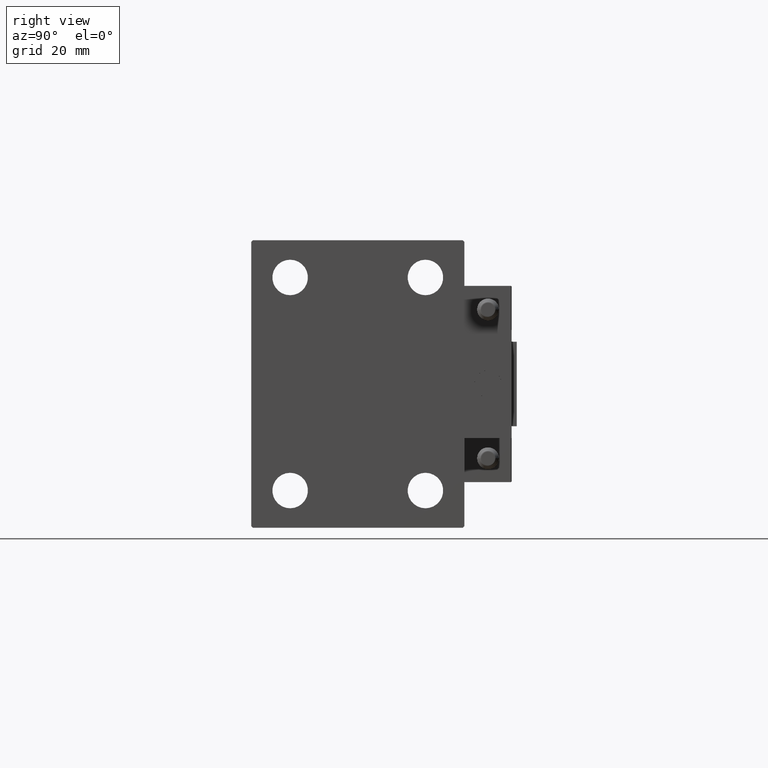
[diagram: clean part render]
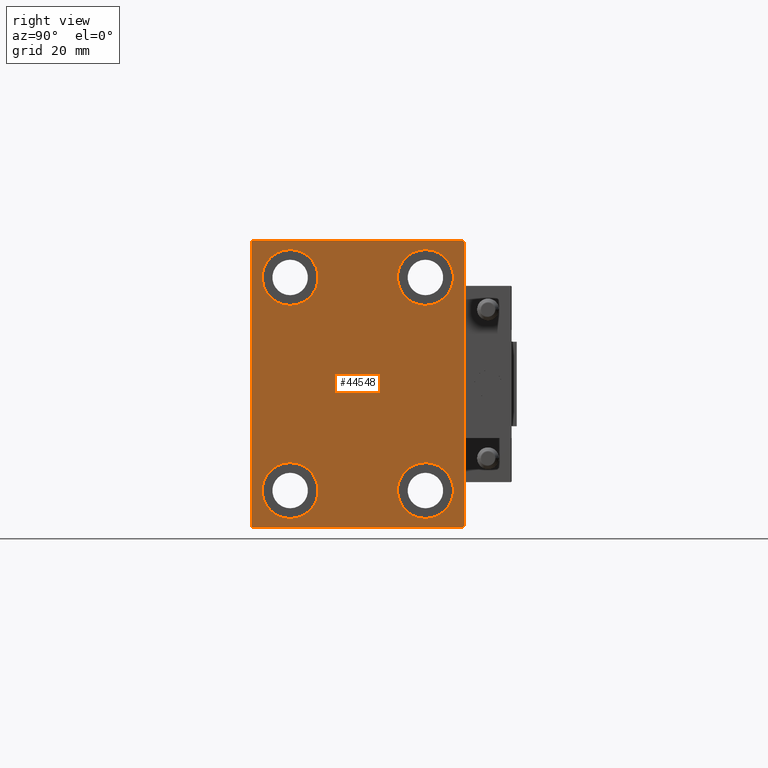
[diagram: same view with one face highlighted and labeled with its STEP entity id]
A machine part, right view. The second image highlights one B-rep face of the part: STEP entity #44548.
In plain terms, the highlighted planar face has unit normal (1, 0, 0).
Its self-contained STEP definition (entity closure, byte-faithful):
#30 = CIRCLE ( 'NONE', #24558, 8.250000000000000000 ) ;
#1088 = ORIENTED_EDGE ( 'NONE', *, *, #23729, .T. ) ;
#1093 = DIRECTION ( 'NONE',  ( 0.000000000000000000, 0.000000000000000000, 1.000000000000000000 ) ) ;
#1156 = LINE ( 'NONE', #5261, #7610 ) ;
#1692 = CARTESIAN_POINT ( 'NONE',  ( 88.00000000000000000, 19.99999999999999645, -23.24999999999999289 ) ) ;
#1827 = LINE ( 'NONE', #40217, #33951 ) ;
#1921 = CIRCLE ( 'NONE', #4367, 8.250000000000000000 ) ;
#1940 = AXIS2_PLACEMENT_3D ( 'NONE', #15238, #27515, #50015 ) ;
#3058 = DIRECTION ( 'NONE',  ( 0.000000000000000000, 0.000000000000000000, -1.000000000000000000 ) ) ;
#3697 = EDGE_LOOP ( 'NONE', ( #24541, #16223, #11099, #10883, #44433, #46330, #41288, #31602 ) ) ;
#4051 = CARTESIAN_POINT ( 'NONE',  ( 88.00000000000000000, 19.99999999999999645, -31.49999999999999289 ) ) ;
#4367 = AXIS2_PLACEMENT_3D ( 'NONE', #24006, #7362, #35020 ) ;
#4533 = VERTEX_POINT ( 'NONE', #16744 ) ;
#4848 = DIRECTION ( 'NONE',  ( 0.000000000000000000, 0.000000000000000000, 1.000000000000000000 ) ) ;
#4946 = CARTESIAN_POINT ( 'NONE',  ( 88.00000000000000000, -20.00000000000000355, -31.49999999999999289 ) ) ;
#5052 = VERTEX_POINT ( 'NONE', #34807 ) ;
#5261 = CARTESIAN_POINT ( 'NONE',  ( 88.00000000000000000, 36.75000000000045475, -36.74999999999943867 ) ) ;
#5374 = DIRECTION ( 'NONE',  ( 0.000000000000000000, 0.000000000000000000, 1.000000000000000000 ) ) ;
#5500 = AXIS2_PLACEMENT_3D ( 'NONE', #4946, #20564, #1093 ) ;
#5790 = CARTESIAN_POINT ( 'NONE',  ( 88.00000000000000000, 36.74999999999999289, 36.74999999999999289 ) ) ;
#6601 = CARTESIAN_POINT ( 'NONE',  ( 88.00000000000000000, -36.75000000000044054, 36.74999999999942446 ) ) ;
#6653 = EDGE_CURVE ( 'NONE', #44770, #32929, #37815, .T. ) ;
#7362 = DIRECTION ( 'NONE',  ( -1.000000000000000000, -0.000000000000000000, -0.000000000000000000 ) ) ;
#7574 = CARTESIAN_POINT ( 'NONE',  ( 88.00000000000000000, -20.00000000000000355, -23.24999999999999289 ) ) ;
#7610 = VECTOR ( 'NONE', #47727, 1000.000000000000000 ) ;
#7682 = LINE ( 'NONE', #23313, #28135 ) ;
#7699 = EDGE_CURVE ( 'NONE', #19615, #27165, #18130, .T. ) ;
#7752 = CARTESIAN_POINT ( 'NONE',  ( 88.00000000000000000, 31.50000000000000000, 41.99999999999999289 ) ) ;
#8442 = CARTESIAN_POINT ( 'NONE',  ( 88.00000000000000000, 20.00000000000000355, 31.50000000000000000 ) ) ;
#8588 = DIRECTION ( 'NONE',  ( 0.000000000000000000, 0.000000000000000000, 1.000000000000000000 ) ) ;
#9161 = EDGE_CURVE ( 'NONE', #13018, #4533, #12583, .T. ) ;
#9604 = CARTESIAN_POINT ( 'NONE',  ( 88.00000000000000000, -19.99999999999999645, 31.50000000000000000 ) ) ;
#10386 = LINE ( 'NONE', #5790, #47368 ) ;
#10430 = DIRECTION ( 'NONE',  ( -1.000000000000000000, -0.000000000000000000, -0.000000000000000000 ) ) ;
#10493 = DIRECTION ( 'NONE',  ( 1.000000000000000000, 0.000000000000000000, 0.000000000000000000 ) ) ;
#10762 = CARTESIAN_POINT ( 'NONE',  ( 88.00000000000000000, 19.99999999999999645, -39.74999999999999289 ) ) ;
#10883 = ORIENTED_EDGE ( 'NONE', *, *, #20715, .T. ) ;
#11099 = ORIENTED_EDGE ( 'NONE', *, *, #37441, .T. ) ;
#11437 = CARTESIAN_POINT ( 'NONE',  ( 88.00000000000000000, -31.00000000000000000, -42.50000000000000711 ) ) ;
#11795 = VERTEX_POINT ( 'NONE', #7574 ) ;
#12583 = CIRCLE ( 'NONE', #1940, 8.249999999999992895 ) ;
#13018 = VERTEX_POINT ( 'NONE', #24160 ) ;
#13200 = DIRECTION ( 'NONE',  ( -1.000000000000000000, -0.000000000000000000, -0.000000000000000000 ) ) ;
#14125 = EDGE_LOOP ( 'NONE', ( #39010, #38576 ) ) ;
#14392 = CIRCLE ( 'NONE', #47868, 8.249999999999992895 ) ;
#15132 = LINE ( 'NONE', #42741, #38212 ) ;
#15238 = CARTESIAN_POINT ( 'NONE',  ( 88.00000000000000000, -19.99999999999999645, 31.50000000000000000 ) ) ;
#15295 = CIRCLE ( 'NONE', #5500, 8.250000000000000000 ) ;
#15339 = VERTEX_POINT ( 'NONE', #11437 ) ;
#15854 = EDGE_CURVE ( 'NONE', #32412, #11795, #15295, .T. ) ;
#16006 = DIRECTION ( 'NONE',  ( 0.000000000000000000, 0.000000000000000000, -1.000000000000000000 ) ) ;
#16223 = ORIENTED_EDGE ( 'NONE', *, *, #6653, .T. ) ;
#16744 = CARTESIAN_POINT ( 'NONE',  ( 88.00000000000000000, -19.99999999999999645, 23.25000000000000355 ) ) ;
#16804 = CIRCLE ( 'NONE', #27430, 8.250000000000000000 ) ;
#17952 = EDGE_LOOP ( 'NONE', ( #28932, #1088 ) ) ;
#18006 = VERTEX_POINT ( 'NONE', #48984 ) ;
#18130 = LINE ( 'NONE', #26320, #47671 ) ;
#18307 = DIRECTION ( 'NONE',  ( -0.000000000000000000, -0.7071067811865474617, 0.7071067811865474617 ) ) ;
#18683 = PLANE ( 'NONE',  #40652 ) ;
#18935 = CARTESIAN_POINT ( 'NONE',  ( 88.00000000000000000, 0.000000000000000000, 0.000000000000000000 ) ) ;
#19590 = CARTESIAN_POINT ( 'NONE',  ( 88.00000000000000000, -31.50000000000000000, 42.49999999999999289 ) ) ;
#19615 = VERTEX_POINT ( 'NONE', #23538 ) ;
#20358 = ORIENTED_EDGE ( 'NONE', *, *, #40125, .T. ) ;
#20564 = DIRECTION ( 'NONE',  ( -1.000000000000000000, -0.000000000000000000, -0.000000000000000000 ) ) ;
#20715 = EDGE_CURVE ( 'NONE', #31065, #15339, #15132, .T. ) ;
#21454 = CARTESIAN_POINT ( 'NONE',  ( 88.00000000000000000, -31.00000000000001421, 42.49999999999999289 ) ) ;
#22997 = DIRECTION ( 'NONE',  ( 0.000000000000000000, 0.000000000000000000, 1.000000000000000000 ) ) ;
#23313 = CARTESIAN_POINT ( 'NONE',  ( 88.00000000000000000, -31.50000000000000000, -42.50000000000000711 ) ) ;
#23320 = DIRECTION ( 'NONE',  ( -0.000000000000000000, 0.7071067811865573427, -0.7071067811865378028 ) ) ;
#23380 = CARTESIAN_POINT ( 'NONE',  ( 88.00000000000000000, -31.50000000000000000, 41.99999999999999289 ) ) ;
#23531 = CARTESIAN_POINT ( 'NONE',  ( 88.00000000000000000, 20.00000000000000355, 23.25000000000000355 ) ) ;
#23538 = CARTESIAN_POINT ( 'NONE',  ( 88.00000000000000000, 31.50000000000001421, -42.00000000000000711 ) ) ;
#23617 = VERTEX_POINT ( 'NONE', #10762 ) ;
#23729 = EDGE_CURVE ( 'NONE', #18006, #39052, #14392, .T. ) ;
#24006 = CARTESIAN_POINT ( 'NONE',  ( 88.00000000000000000, -20.00000000000000355, -31.49999999999999289 ) ) ;
#24160 = CARTESIAN_POINT ( 'NONE',  ( 88.00000000000000000, -19.99999999999999645, 39.74999999999999289 ) ) ;
#24541 = ORIENTED_EDGE ( 'NONE', *, *, #41478, .T. ) ;
#24558 = AXIS2_PLACEMENT_3D ( 'NONE', #4051, #38345, #22997 ) ;
#25112 = EDGE_CURVE ( 'NONE', #45932, #23617, #30, .T. ) ;
#25203 = VERTEX_POINT ( 'NONE', #40112 ) ;
#26320 = CARTESIAN_POINT ( 'NONE',  ( 88.00000000000000000, 31.50000000000001421, -42.50000000000000711 ) ) ;
#27121 = FACE_BOUND ( 'NONE', #17952, .T. ) ;
#27165 = VERTEX_POINT ( 'NONE', #7752 ) ;
#27430 = AXIS2_PLACEMENT_3D ( 'NONE', #49815, #10430, #30377 ) ;
#27515 = DIRECTION ( 'NONE',  ( -1.000000000000000000, -0.000000000000000000, -0.000000000000000000 ) ) ;
#28135 = VECTOR ( 'NONE', #38901, 1000.000000000000000 ) ;
#28674 = DIRECTION ( 'NONE',  ( -1.000000000000000000, -0.000000000000000000, -0.000000000000000000 ) ) ;
#28932 = ORIENTED_EDGE ( 'NONE', *, *, #33344, .T. ) ;
#29369 = EDGE_LOOP ( 'NONE', ( #20358, #50113 ) ) ;
#30377 = DIRECTION ( 'NONE',  ( 0.000000000000000000, 0.000000000000000000, 1.000000000000000000 ) ) ;
#31065 = VERTEX_POINT ( 'NONE', #43138 ) ;
#31215 = FACE_OUTER_BOUND ( 'NONE', #3697, .T. ) ;
#31220 = EDGE_CURVE ( 'NONE', #25203, #19615, #1156, .T. ) ;
#31221 = EDGE_CURVE ( 'NONE', #4533, #13018, #36236, .T. ) ;
#31485 = CARTESIAN_POINT ( 'NONE',  ( 88.00000000000000000, 20.00000000000000355, 31.50000000000000000 ) ) ;
#31602 = ORIENTED_EDGE ( 'NONE', *, *, #50518, .T. ) ;
#31869 = LINE ( 'NONE', #19590, #34685 ) ;
#32150 = EDGE_CURVE ( 'NONE', #11795, #32412, #1921, .T. ) ;
#32412 = VERTEX_POINT ( 'NONE', #38018 ) ;
#32929 = VERTEX_POINT ( 'NONE', #23380 ) ;
#33053 = DIRECTION ( 'NONE',  ( 0.000000000000000000, -1.000000000000000000, -2.202823461557850341E-16 ) ) ;
#33298 = EDGE_CURVE ( 'NONE', #15339, #25203, #7682, .T. ) ;
#33344 = EDGE_CURVE ( 'NONE', #39052, #18006, #38739, .T. ) ;
#33951 = VECTOR ( 'NONE', #33053, 1000.000000000000000 ) ;
#34685 = VECTOR ( 'NONE', #16006, 1000.000000000000000 ) ;
#34807 = CARTESIAN_POINT ( 'NONE',  ( 88.00000000000000000, 30.99999999999998579, 42.50000000000000711 ) ) ;
#35020 = DIRECTION ( 'NONE',  ( 0.000000000000000000, 0.000000000000000000, 1.000000000000000000 ) ) ;
#35322 = DIRECTION ( 'NONE',  ( -1.000000000000000000, -0.000000000000000000, -0.000000000000000000 ) ) ;
#35898 = EDGE_LOOP ( 'NONE', ( #49423, #48869 ) ) ;
#36236 = CIRCLE ( 'NONE', #39461, 8.249999999999992895 ) ;
#37441 = EDGE_CURVE ( 'NONE', #32929, #31065, #31869, .T. ) ;
#37815 = LINE ( 'NONE', #6601, #46835 ) ;
#38018 = CARTESIAN_POINT ( 'NONE',  ( 88.00000000000000000, -20.00000000000000355, -39.74999999999999289 ) ) ;
#38124 = FACE_BOUND ( 'NONE', #14125, .T. ) ;
#38212 = VECTOR ( 'NONE', #23320, 1000.000000000000000 ) ;
#38345 = DIRECTION ( 'NONE',  ( -1.000000000000000000, -0.000000000000000000, -0.000000000000000000 ) ) ;
#38576 = ORIENTED_EDGE ( 'NONE', *, *, #9161, .T. ) ;
#38739 = CIRCLE ( 'NONE', #46066, 8.249999999999992895 ) ;
#38901 = DIRECTION ( 'NONE',  ( 0.000000000000000000, 1.000000000000000000, 0.000000000000000000 ) ) ;
#39010 = ORIENTED_EDGE ( 'NONE', *, *, #31221, .T. ) ;
#39052 = VERTEX_POINT ( 'NONE', #23531 ) ;
#39461 = AXIS2_PLACEMENT_3D ( 'NONE', #9604, #13200, #8588 ) ;
#40112 = CARTESIAN_POINT ( 'NONE',  ( 88.00000000000000000, 31.00000000000002842, -42.50000000000000711 ) ) ;
#40125 = EDGE_CURVE ( 'NONE', #23617, #45932, #16804, .T. ) ;
#40217 = CARTESIAN_POINT ( 'NONE',  ( 88.00000000000000000, 31.50000000000000000, 42.50000000000000711 ) ) ;
#40652 = AXIS2_PLACEMENT_3D ( 'NONE', #18935, #10493, #3058 ) ;
#41288 = ORIENTED_EDGE ( 'NONE', *, *, #7699, .T. ) ;
#41414 = DIRECTION ( 'NONE',  ( 0.000000000000000000, -1.632680918566406300E-16, 1.000000000000000000 ) ) ;
#41478 = EDGE_CURVE ( 'NONE', #5052, #44770, #1827, .T. ) ;
#42705 = FACE_BOUND ( 'NONE', #35898, .T. ) ;
#42741 = CARTESIAN_POINT ( 'NONE',  ( 88.00000000000000000, -36.74999999999958078, -36.75000000000059686 ) ) ;
#43138 = CARTESIAN_POINT ( 'NONE',  ( 88.00000000000000000, -31.50000000000000000, -42.00000000000002132 ) ) ;
#44433 = ORIENTED_EDGE ( 'NONE', *, *, #33298, .T. ) ;
#44548 = ADVANCED_FACE ( 'NONE', ( #46035, #38124, #27121, #42705, #31215 ), #18683, .T. ) ;
#44770 = VERTEX_POINT ( 'NONE', #21454 ) ;
#45932 = VERTEX_POINT ( 'NONE', #1692 ) ;
#46035 = FACE_BOUND ( 'NONE', #29369, .T. ) ;
#46066 = AXIS2_PLACEMENT_3D ( 'NONE', #8442, #28674, #5374 ) ;
#46253 = DIRECTION ( 'NONE',  ( 0.000000000000000000, -0.7071067811865378028, -0.7071067811865573427 ) ) ;
#46330 = ORIENTED_EDGE ( 'NONE', *, *, #31220, .T. ) ;
#46835 = VECTOR ( 'NONE', #46253, 1000.000000000000000 ) ;
#47368 = VECTOR ( 'NONE', #18307, 1000.000000000000114 ) ;
#47671 = VECTOR ( 'NONE', #41414, 1000.000000000000000 ) ;
#47727 = DIRECTION ( 'NONE',  ( -0.000000000000000000, 0.7071067811865378028, 0.7071067811865573427 ) ) ;
#47868 = AXIS2_PLACEMENT_3D ( 'NONE', #31485, #35322, #4848 ) ;
#48869 = ORIENTED_EDGE ( 'NONE', *, *, #32150, .T. ) ;
#48984 = CARTESIAN_POINT ( 'NONE',  ( 88.00000000000000000, 20.00000000000000355, 39.74999999999999289 ) ) ;
#49423 = ORIENTED_EDGE ( 'NONE', *, *, #15854, .T. ) ;
#49815 = CARTESIAN_POINT ( 'NONE',  ( 88.00000000000000000, 19.99999999999999645, -31.49999999999999289 ) ) ;
#50015 = DIRECTION ( 'NONE',  ( 0.000000000000000000, 0.000000000000000000, 1.000000000000000000 ) ) ;
#50113 = ORIENTED_EDGE ( 'NONE', *, *, #25112, .T. ) ;
#50518 = EDGE_CURVE ( 'NONE', #27165, #5052, #10386, .T. ) ;